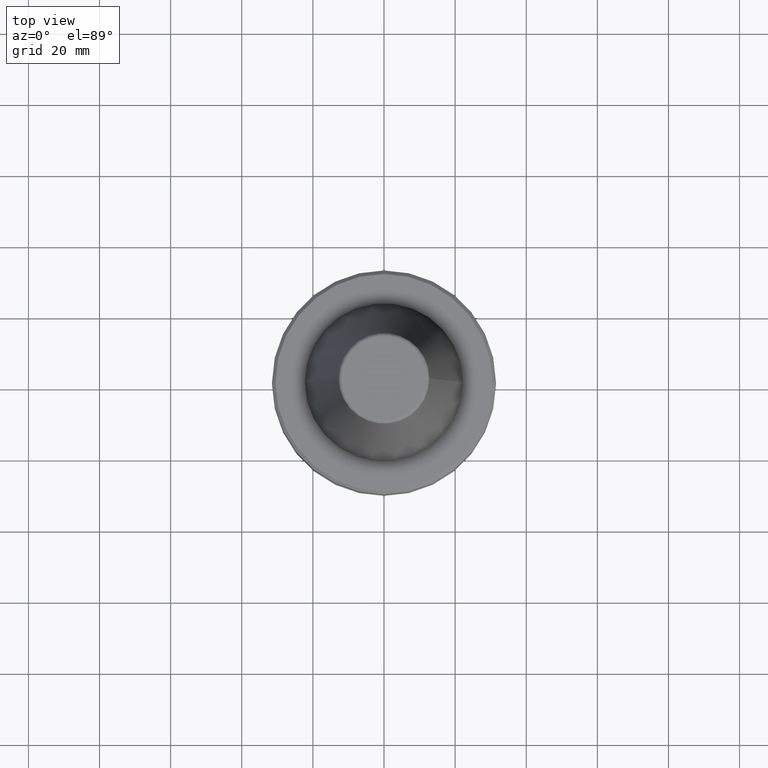
[diagram: clean part render]
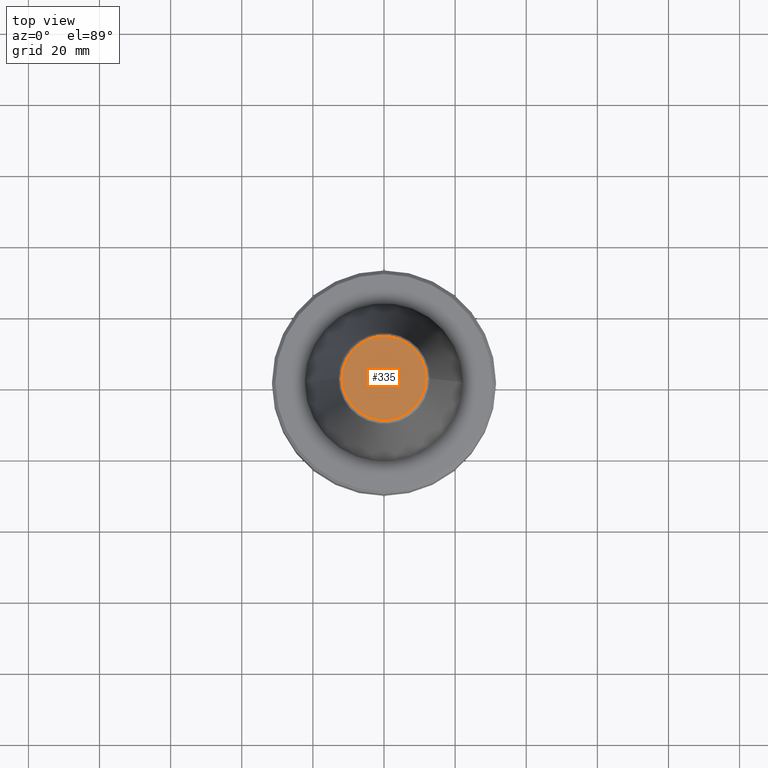
[diagram: same view with one face highlighted and labeled with its STEP entity id]
A machine part, top view. The second image highlights one B-rep face of the part: STEP entity #335.
In plain terms, the highlighted planar face has unit normal (0, -0, 1).
Its self-contained STEP definition (entity closure, byte-faithful):
#83 = CIRCLE ( 'NONE', #758, 11.82266672057007100 ) ;
#111 = CARTESIAN_POINT ( 'NONE',  ( 11.82266672057007100, 0.0000000000000000000, 65.40000000000000600 ) ) ;
#139 = VERTEX_POINT ( 'NONE', #760 ) ;
#142 = AXIS2_PLACEMENT_3D ( 'NONE', #491, #834, #818 ) ;
#241 = PLANE ( 'NONE',  #142 ) ;
#254 = FACE_OUTER_BOUND ( 'NONE', #554, .T. ) ;
#273 = EDGE_CURVE ( 'NONE', #139, #890, #83, .T. ) ;
#288 = AXIS2_PLACEMENT_3D ( 'NONE', #330, #1106, #1195 ) ;
#330 = CARTESIAN_POINT ( 'NONE',  ( 0.0000000000000000000, 0.0000000000000000000, 65.40000000000000600 ) ) ;
#335 = ADVANCED_FACE ( 'NONE', ( #254 ), #241, .T. ) ;
#434 = ORIENTED_EDGE ( 'NONE', *, *, #273, .T. ) ;
#450 = ORIENTED_EDGE ( 'NONE', *, *, #744, .T. ) ;
#467 = DIRECTION ( 'NONE',  ( -0.0000000000000000000, -0.0000000000000000000, 1.000000000000000000 ) ) ;
#491 = CARTESIAN_POINT ( 'NONE',  ( 0.0000000000000000000, 0.0000000000000000000, 65.40000000000000600 ) ) ;
#554 = EDGE_LOOP ( 'NONE', ( #450, #434 ) ) ;
#557 = DIRECTION ( 'NONE',  ( 1.000000000000000000, 0.0000000000000000000, 0.0000000000000000000 ) ) ;
#744 = EDGE_CURVE ( 'NONE', #890, #139, #1086, .T. ) ;
#758 = AXIS2_PLACEMENT_3D ( 'NONE', #1149, #467, #557 ) ;
#760 = CARTESIAN_POINT ( 'NONE',  ( -11.82266672057007100, 1.508450503654657300E-015, 65.40000000000000600 ) ) ;
#818 = DIRECTION ( 'NONE',  ( 1.000000000000000000, 0.0000000000000000000, 0.0000000000000000000 ) ) ;
#834 = DIRECTION ( 'NONE',  ( 0.0000000000000000000, -0.0000000000000000000, 1.000000000000000000 ) ) ;
#890 = VERTEX_POINT ( 'NONE', #111 ) ;
#1086 = CIRCLE ( 'NONE', #288, 11.82266672057007100 ) ;
#1106 = DIRECTION ( 'NONE',  ( -0.0000000000000000000, -0.0000000000000000000, 1.000000000000000000 ) ) ;
#1149 = CARTESIAN_POINT ( 'NONE',  ( 0.0000000000000000000, 0.0000000000000000000, 65.40000000000000600 ) ) ;
#1195 = DIRECTION ( 'NONE',  ( 1.000000000000000000, 0.0000000000000000000, 0.0000000000000000000 ) ) ;